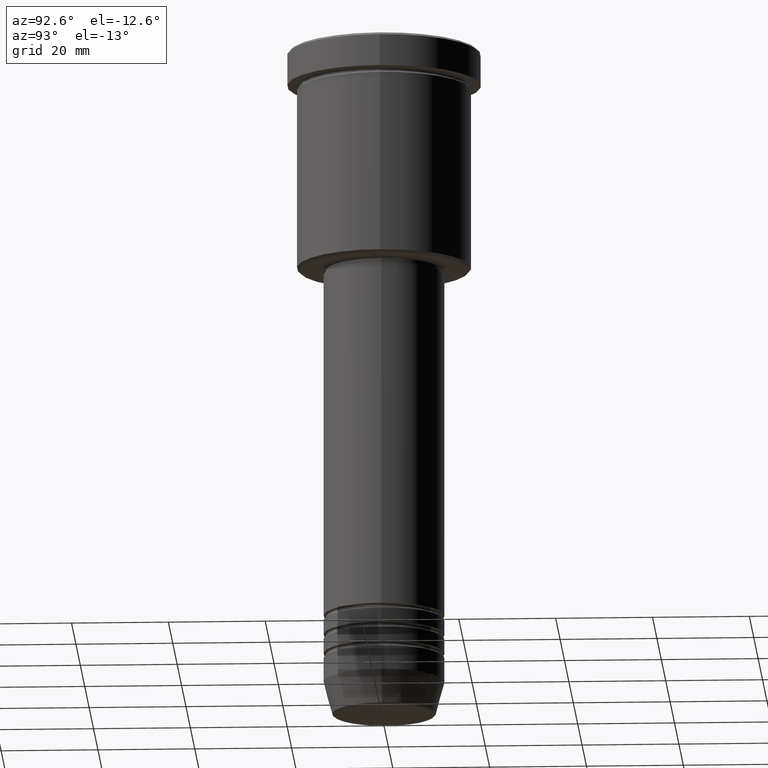
[diagram: clean part render]
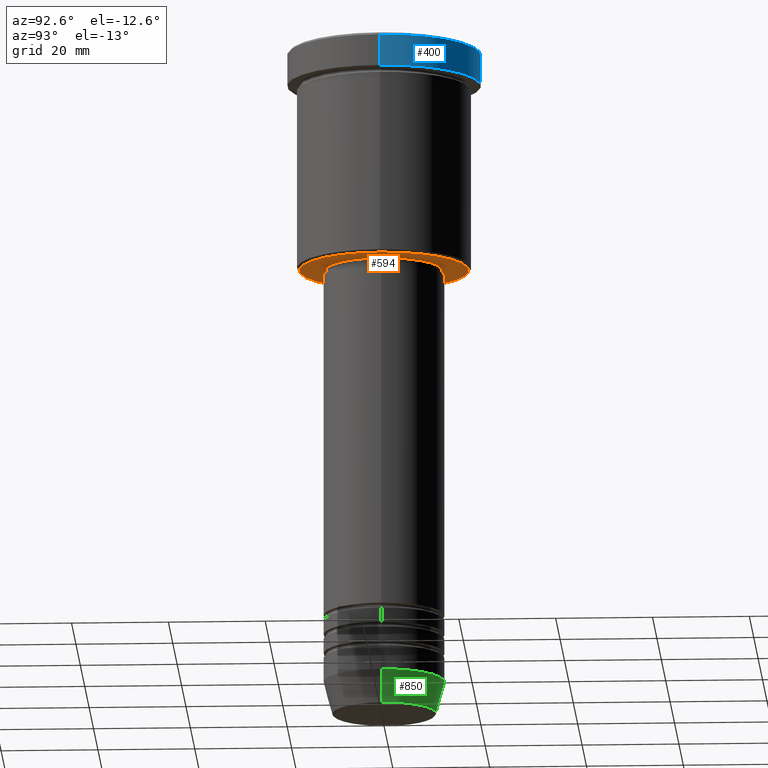
[diagram: same view with three faces highlighted in distinct colors, each labeled with its STEP entity id]
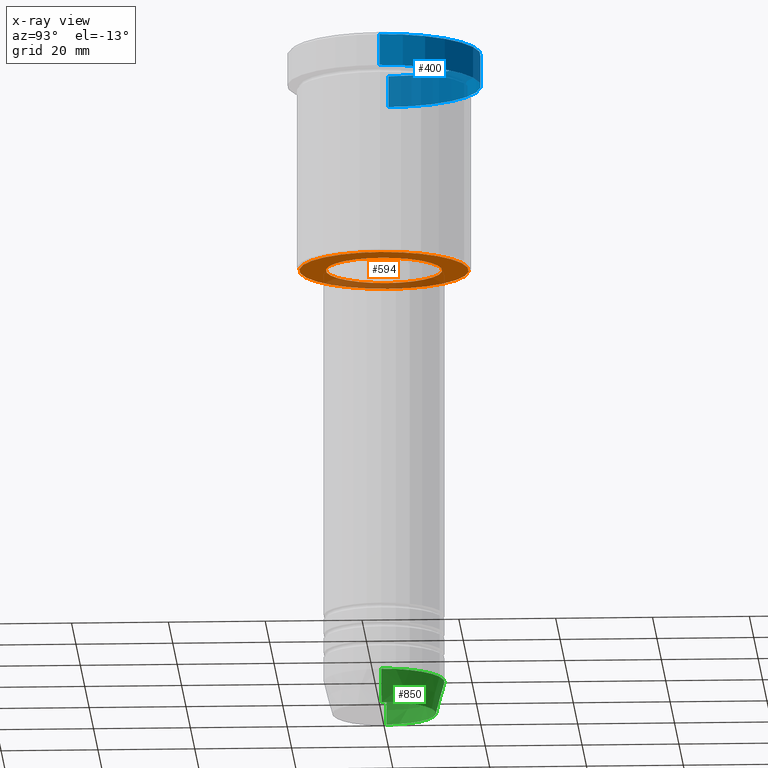
[diagram: x-ray of the same camera — body ghosted, the three highlighted faces saturated]
A machine part, auxiliary view with three faces highlighted in distinct colors.
The next image is the same camera in x-ray (body ghosted, the three faces saturated) — at least one of them is partly hidden behind the body in this view.
Their STEP definitions:

[orange] entity #594 — the highlighted planar face has unit normal (0, 0, -1).
#15 = DIRECTION ( 'NONE',  ( 0.000000000000000000, 0.000000000000000000, -1.000000000000000000 ) ) ;
#85 = AXIS2_PLACEMENT_3D ( 'NONE', #862, #397, #631 ) ;
#87 = AXIS2_PLACEMENT_3D ( 'NONE', #814, #974, #152 ) ;
#152 = DIRECTION ( 'NONE',  ( -1.000000000000000000, 0.000000000000000000, 0.000000000000000000 ) ) ;
#176 = CIRCLE ( 'NONE', #415, 17.50000000000001421 ) ;
#185 = EDGE_LOOP ( 'NONE', ( #426, #468 ) ) ;
#235 = DIRECTION ( 'NONE',  ( 1.000000000000000000, 0.000000000000000000, 0.000000000000000000 ) ) ;
#237 = AXIS2_PLACEMENT_3D ( 'NONE', #1127, #787, #235 ) ;
#252 = EDGE_CURVE ( 'NONE', #520, #609, #744, .T. ) ;
#276 = CARTESIAN_POINT ( 'NONE',  ( -12.00000000000000000, 1.469576158976823947E-15, -46.00000000000000711 ) ) ;
#289 = CARTESIAN_POINT ( 'NONE',  ( 0.000000000000000000, 18.00000000000000000, -46.00000000000000000 ) ) ;
#394 = ORIENTED_EDGE ( 'NONE', *, *, #1053, .T. ) ;
#397 = DIRECTION ( 'NONE',  ( -0.000000000000000000, -0.000000000000000000, 1.000000000000000000 ) ) ;
#415 = AXIS2_PLACEMENT_3D ( 'NONE', #996, #464, #824 ) ;
#426 = ORIENTED_EDGE ( 'NONE', *, *, #252, .T. ) ;
#427 = CARTESIAN_POINT ( 'NONE',  ( -17.50000000000001421, 2.173748068486552430E-15, -46.00000000000000000 ) ) ;
#461 = FACE_OUTER_BOUND ( 'NONE', #1161, .T. ) ;
#464 = DIRECTION ( 'NONE',  ( 0.000000000000000000, 0.000000000000000000, -1.000000000000000000 ) ) ;
#468 = ORIENTED_EDGE ( 'NONE', *, *, #530, .T. ) ;
#475 = PLANE ( 'NONE',  #987 ) ;
#520 = VERTEX_POINT ( 'NONE', #791 ) ;
#530 = EDGE_CURVE ( 'NONE', #609, #520, #1023, .T. ) ;
#557 = FACE_BOUND ( 'NONE', #185, .T. ) ;
#594 = ADVANCED_FACE ( 'NONE', ( #461, #557 ), #475, .T. ) ;
#607 = VERTEX_POINT ( 'NONE', #1027 ) ;
#609 = VERTEX_POINT ( 'NONE', #276 ) ;
#631 = DIRECTION ( 'NONE',  ( 1.000000000000000000, 0.000000000000000000, 0.000000000000000000 ) ) ;
#666 = DIRECTION ( 'NONE',  ( -1.000000000000000000, 0.000000000000000000, -0.000000000000000000 ) ) ;
#744 = CIRCLE ( 'NONE', #237, 12.00000000000000000 ) ;
#787 = DIRECTION ( 'NONE',  ( -0.000000000000000000, -0.000000000000000000, 1.000000000000000000 ) ) ;
#791 = CARTESIAN_POINT ( 'NONE',  ( 12.00000000000000000, 0.000000000000000000, -46.00000000000000711 ) ) ;
#814 = CARTESIAN_POINT ( 'NONE',  ( 0.000000000000000000, 0.000000000000000000, -46.00000000000000000 ) ) ;
#815 = VERTEX_POINT ( 'NONE', #427 ) ;
#824 = DIRECTION ( 'NONE',  ( -1.000000000000000000, 0.000000000000000000, 0.000000000000000000 ) ) ;
#862 = CARTESIAN_POINT ( 'NONE',  ( 0.000000000000000000, 0.000000000000000000, -46.00000000000000711 ) ) ;
#920 = ORIENTED_EDGE ( 'NONE', *, *, #1122, .T. ) ;
#974 = DIRECTION ( 'NONE',  ( 0.000000000000000000, 0.000000000000000000, -1.000000000000000000 ) ) ;
#987 = AXIS2_PLACEMENT_3D ( 'NONE', #289, #15, #666 ) ;
#996 = CARTESIAN_POINT ( 'NONE',  ( 0.000000000000000000, 0.000000000000000000, -46.00000000000000000 ) ) ;
#1023 = CIRCLE ( 'NONE', #85, 12.00000000000000000 ) ;
#1027 = CARTESIAN_POINT ( 'NONE',  ( 17.50000000000001421, 0.000000000000000000, -46.00000000000000000 ) ) ;
#1053 = EDGE_CURVE ( 'NONE', #607, #815, #1174, .T. ) ;
#1122 = EDGE_CURVE ( 'NONE', #815, #607, #176, .T. ) ;
#1127 = CARTESIAN_POINT ( 'NONE',  ( 0.000000000000000000, 0.000000000000000000, -46.00000000000000711 ) ) ;
#1161 = EDGE_LOOP ( 'NONE', ( #394, #920 ) ) ;
#1174 = CIRCLE ( 'NONE', #87, 17.50000000000001421 ) ;

[blue] entity #400 — the highlighted cylindrical surface (partial cylindrical patch) has radius 20 mm, axis along (-0, -0, 1).
#8 = VERTEX_POINT ( 'NONE', #926 ) ;
#16 = LINE ( 'NONE', #481, #582 ) ;
#30 = DIRECTION ( 'NONE',  ( 1.000000000000000000, 0.000000000000000000, 0.000000000000000000 ) ) ;
#107 = CARTESIAN_POINT ( 'NONE',  ( 0.000000000000000000, 0.000000000000000000, -0.5000000000000247580 ) ) ;
#118 = AXIS2_PLACEMENT_3D ( 'NONE', #1104, #442, #296 ) ;
#127 = DIRECTION ( 'NONE',  ( 1.000000000000000000, 0.000000000000000000, 0.000000000000000000 ) ) ;
#156 = EDGE_CURVE ( 'NONE', #458, #163, #16, .T. ) ;
#163 = VERTEX_POINT ( 'NONE', #1111 ) ;
#212 = CIRCLE ( 'NONE', #951, 20.00000000000000000 ) ;
#215 = DIRECTION ( 'NONE',  ( 0.000000000000000000, 0.000000000000000000, -1.000000000000000000 ) ) ;
#223 = EDGE_CURVE ( 'NONE', #925, #163, #212, .T. ) ;
#296 = DIRECTION ( 'NONE',  ( 1.000000000000000000, 0.000000000000000000, 0.000000000000000000 ) ) ;
#303 = DIRECTION ( 'NONE',  ( -0.000000000000000000, -0.000000000000000000, 1.000000000000000000 ) ) ;
#305 = CARTESIAN_POINT ( 'NONE',  ( -20.00000000000000000, 2.449293598294706513E-15, -0.5000000000000247580 ) ) ;
#382 = ORIENTED_EDGE ( 'NONE', *, *, #494, .T. ) ;
#400 = ADVANCED_FACE ( 'NONE', ( #670 ), #755, .T. ) ;
#441 = EDGE_CURVE ( 'NONE', #8, #925, #647, .T. ) ;
#442 = DIRECTION ( 'NONE',  ( -0.000000000000000000, -0.000000000000000000, 1.000000000000000000 ) ) ;
#458 = VERTEX_POINT ( 'NONE', #990 ) ;
#481 = CARTESIAN_POINT ( 'NONE',  ( 20.00000000000000000, 0.000000000000000000, 0.000000000000000000 ) ) ;
#494 = EDGE_CURVE ( 'NONE', #458, #8, #841, .T. ) ;
#511 = ORIENTED_EDGE ( 'NONE', *, *, #441, .T. ) ;
#547 = AXIS2_PLACEMENT_3D ( 'NONE', #676, #303, #127 ) ;
#582 = VECTOR ( 'NONE', #940, 1000.000000000000000 ) ;
#623 = CARTESIAN_POINT ( 'NONE',  ( -20.00000000000000000, 2.449293598294706513E-15, 0.000000000000000000 ) ) ;
#640 = ORIENTED_EDGE ( 'NONE', *, *, #223, .T. ) ;
#647 = LINE ( 'NONE', #623, #860 ) ;
#670 = FACE_OUTER_BOUND ( 'NONE', #701, .T. ) ;
#676 = CARTESIAN_POINT ( 'NONE',  ( 0.000000000000000000, 0.000000000000000000, -6.999999999999995559 ) ) ;
#701 = EDGE_LOOP ( 'NONE', ( #382, #511, #640, #896 ) ) ;
#755 = CYLINDRICAL_SURFACE ( 'NONE', #118, 20.00000000000000000 ) ;
#841 = CIRCLE ( 'NONE', #547, 20.00000000000000000 ) ;
#860 = VECTOR ( 'NONE', #1109, 1000.000000000000000 ) ;
#896 = ORIENTED_EDGE ( 'NONE', *, *, #156, .F. ) ;
#925 = VERTEX_POINT ( 'NONE', #305 ) ;
#926 = CARTESIAN_POINT ( 'NONE',  ( -20.00000000000000000, 2.449293598294706513E-15, -6.999999999999995559 ) ) ;
#940 = DIRECTION ( 'NONE',  ( -0.000000000000000000, -0.000000000000000000, 1.000000000000000000 ) ) ;
#951 = AXIS2_PLACEMENT_3D ( 'NONE', #107, #215, #30 ) ;
#990 = CARTESIAN_POINT ( 'NONE',  ( 20.00000000000000000, 0.000000000000000000, -6.999999999999995559 ) ) ;
#1104 = CARTESIAN_POINT ( 'NONE',  ( 0.000000000000000000, 0.000000000000000000, 0.000000000000000000 ) ) ;
#1109 = DIRECTION ( 'NONE',  ( -0.000000000000000000, -0.000000000000000000, 1.000000000000000000 ) ) ;
#1111 = CARTESIAN_POINT ( 'NONE',  ( 20.00000000000000000, 0.000000000000000000, -0.5000000000000247580 ) ) ;

[green] entity #850 — the highlighted conical surface has half-angle 15 deg.
#82 = ORIENTED_EDGE ( 'NONE', *, *, #1000, .F. ) ;
#117 = AXIS2_PLACEMENT_3D ( 'NONE', #525, #1144, #331 ) ;
#137 = AXIS2_PLACEMENT_3D ( 'NONE', #1065, #1163, #886 ) ;
#144 = ORIENTED_EDGE ( 'NONE', *, *, #1069, .T. ) ;
#149 = CARTESIAN_POINT ( 'NONE',  ( 10.72365507213718416, 0.000000000000000000, -139.6294095225512990 ) ) ;
#158 = VECTOR ( 'NONE', #1076, 1000.000000000000000 ) ;
#211 = CARTESIAN_POINT ( 'NONE',  ( -10.72365507213718416, 1.422038742429750121E-15, -139.6294095225512990 ) ) ;
#282 = DIRECTION ( 'NONE',  ( 1.000000000000000000, 0.000000000000000000, 0.000000000000000000 ) ) ;
#293 = EDGE_CURVE ( 'NONE', #1068, #495, #1006, .T. ) ;
#309 = EDGE_CURVE ( 'NONE', #484, #495, #900, .T. ) ;
#322 = CARTESIAN_POINT ( 'NONE',  ( -12.50000000000000000, 1.530808498934191521E-15, -133.0000000000000000 ) ) ;
#331 = DIRECTION ( 'NONE',  ( 1.000000000000000000, 0.000000000000000000, 0.000000000000000000 ) ) ;
#431 = CARTESIAN_POINT ( 'NONE',  ( 12.50000000000000000, 0.000000000000000000, -133.0000000000000000 ) ) ;
#457 = CARTESIAN_POINT ( 'NONE',  ( 0.000000000000000000, 0.000000000000000000, -133.0000000000000000 ) ) ;
#484 = VERTEX_POINT ( 'NONE', #211 ) ;
#495 = VERTEX_POINT ( 'NONE', #867 ) ;
#514 = CARTESIAN_POINT ( 'NONE',  ( 12.50000000000000000, 0.000000000000000000, -133.0000000000000000 ) ) ;
#525 = CARTESIAN_POINT ( 'NONE',  ( 0.000000000000000000, 0.000000000000000000, -133.0000000000000000 ) ) ;
#589 = ORIENTED_EDGE ( 'NONE', *, *, #293, .F. ) ;
#716 = ORIENTED_EDGE ( 'NONE', *, *, #309, .T. ) ;
#766 = VERTEX_POINT ( 'NONE', #149 ) ;
#801 = VECTOR ( 'NONE', #1064, 1000.000000000000000 ) ;
#850 = ADVANCED_FACE ( 'NONE', ( #1101 ), #988, .T. ) ;
#867 = CARTESIAN_POINT ( 'NONE',  ( -12.50000000000000000, 1.530808498934191521E-15, -133.0000000000000000 ) ) ;
#886 = DIRECTION ( 'NONE',  ( 1.000000000000000000, 0.000000000000000000, 0.000000000000000000 ) ) ;
#900 = LINE ( 'NONE', #322, #801 ) ;
#988 = CONICAL_SURFACE ( 'NONE', #1137, 12.50000000000000000, 0.2617993877991500740 ) ;
#989 = CIRCLE ( 'NONE', #137, 10.72365507213718416 ) ;
#991 = LINE ( 'NONE', #431, #158 ) ;
#1000 = EDGE_CURVE ( 'NONE', #766, #1068, #991, .T. ) ;
#1002 = DIRECTION ( 'NONE',  ( -0.000000000000000000, -0.000000000000000000, 1.000000000000000000 ) ) ;
#1006 = CIRCLE ( 'NONE', #117, 12.50000000000000000 ) ;
#1064 = DIRECTION ( 'NONE',  ( -0.2588190451025213501, 3.169619151431772337E-17, 0.9659258262890680902 ) ) ;
#1065 = CARTESIAN_POINT ( 'NONE',  ( 0.000000000000000000, 0.000000000000000000, -139.6294095225512990 ) ) ;
#1066 = EDGE_LOOP ( 'NONE', ( #144, #716, #589, #82 ) ) ;
#1068 = VERTEX_POINT ( 'NONE', #514 ) ;
#1069 = EDGE_CURVE ( 'NONE', #766, #484, #989, .T. ) ;
#1076 = DIRECTION ( 'NONE',  ( 0.2588190451025213501, 0.000000000000000000, 0.9659258262890680902 ) ) ;
#1101 = FACE_OUTER_BOUND ( 'NONE', #1066, .T. ) ;
#1137 = AXIS2_PLACEMENT_3D ( 'NONE', #457, #1002, #282 ) ;
#1144 = DIRECTION ( 'NONE',  ( -0.000000000000000000, -0.000000000000000000, 1.000000000000000000 ) ) ;
#1163 = DIRECTION ( 'NONE',  ( -0.000000000000000000, -0.000000000000000000, 1.000000000000000000 ) ) ;